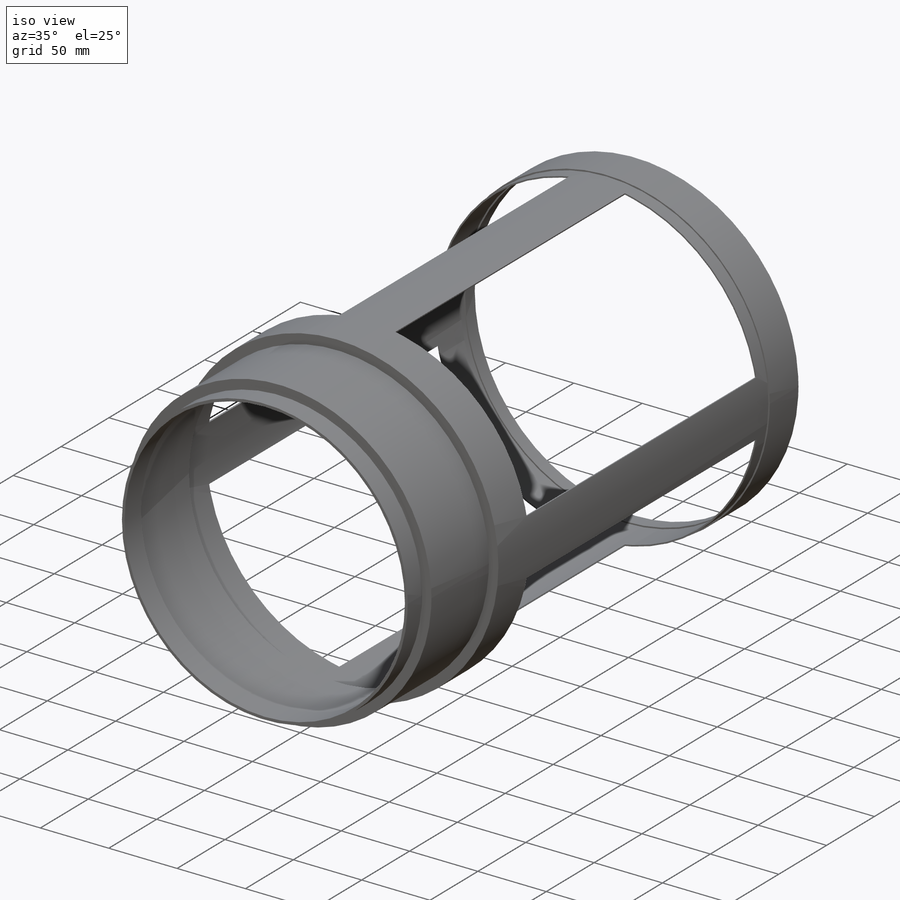
[diagram: iso view]
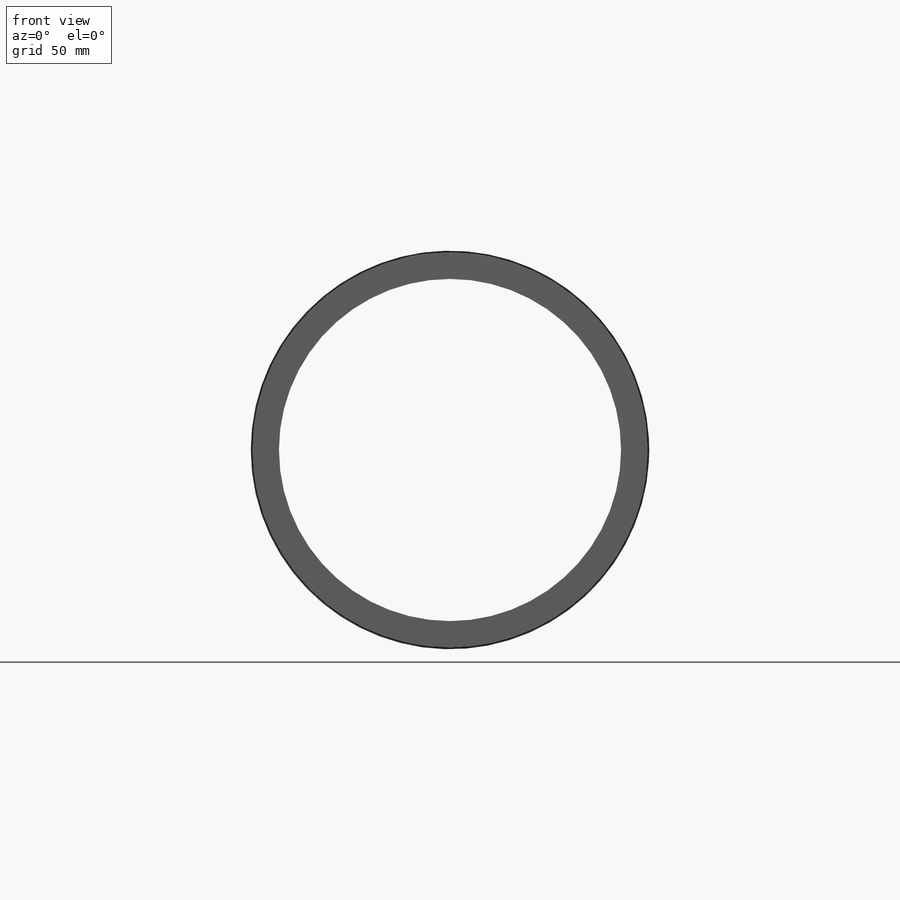
[diagram: front view]
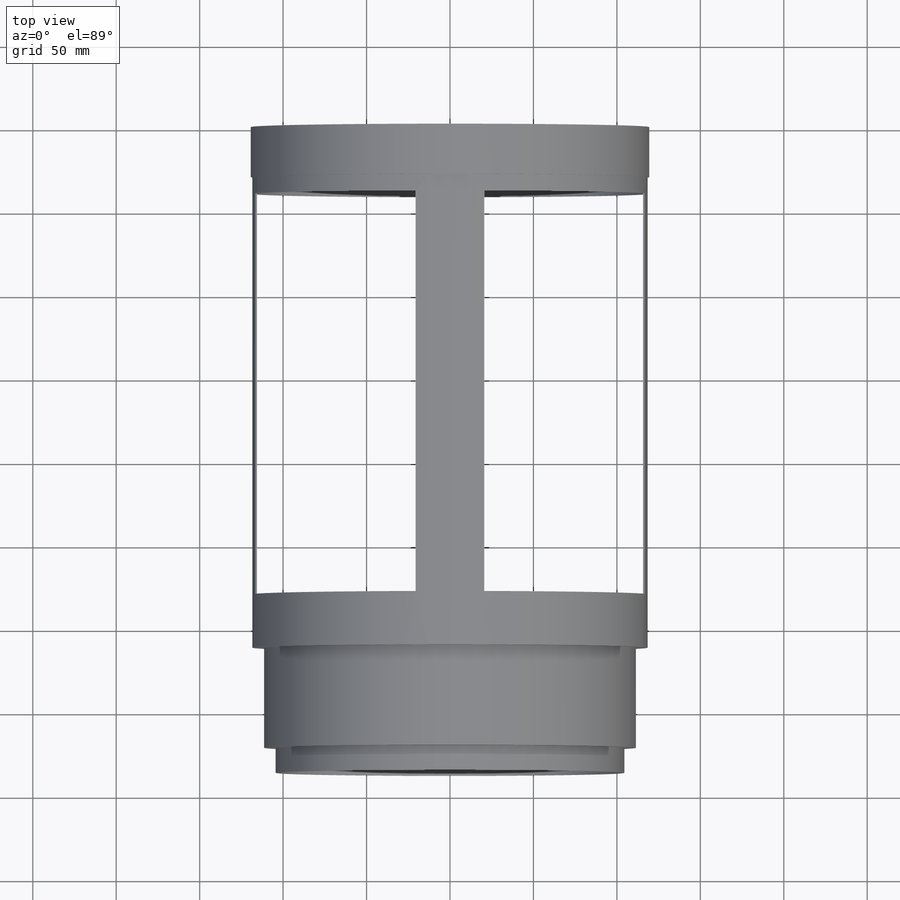
[diagram: top view]
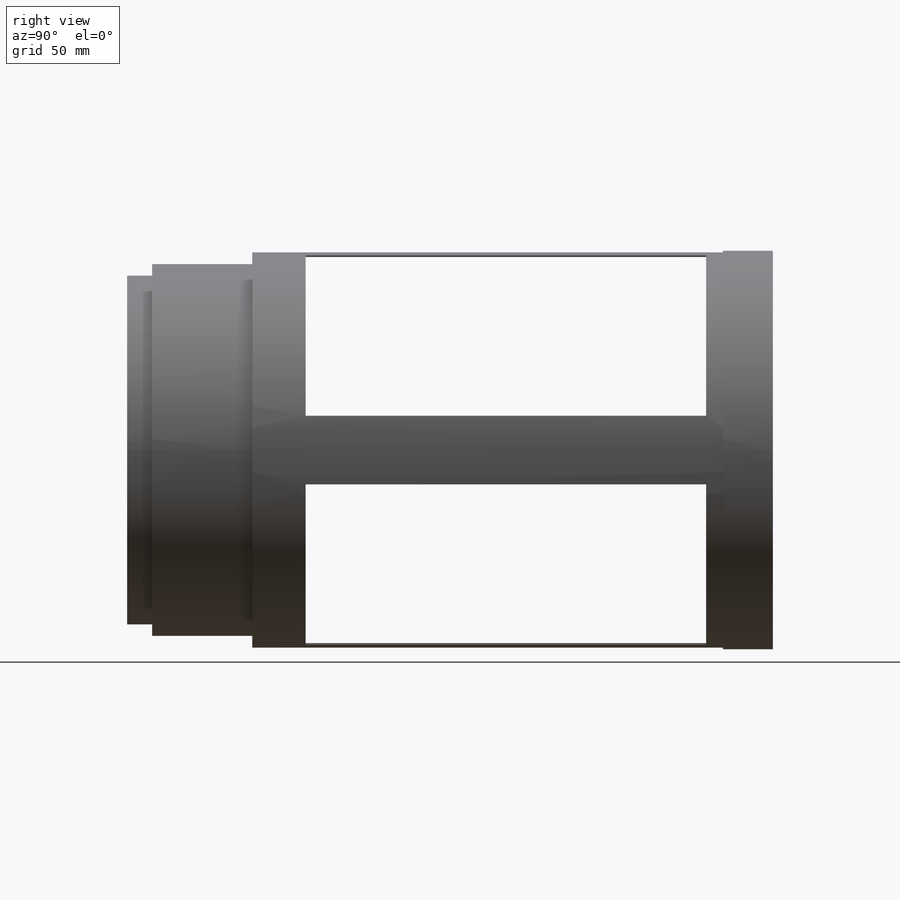
[diagram: right view]
SOLIDWORKS PART (.sldprt)
format: sldprt  version: not decoded by parser v0  size: 316,928 bytes
history: native  units: mm
features: sketch x10, extrude x10, material x1 (+16 scaffold rows collapsed)
feature tree (37):
  scaffold x16  (default folders/planes/origin — collapsed)
  material  "6063-T4"
  sketch  "Sketch1"  dims[D1=~123.403339mm]
  extrude  "Extrude1"  Depth=10mm
  sketch  "Sketch2"  dims[D1=~108.833808mm]
  extrude  "Extrude2"  Depth=5mm
  sketch  "Sketch3"
  extrude  "Extrude3"  Depth=15mm
  sketch  "Sketch4"  dims[D1=~134.207725mm]
  extrude  "Extrude4"  Depth=10mm
  sketch  "Sketch5"  dims[D1=10.0deg]
  extrude  "Extrude5"  Depth=240mm
  sketch  "Sketch6"
  extrude  "Extrude6"  Depth=30mm
  sketch  "Sketch7"  dims[D1=~91.083883mm]
  extrude  "Extrude7"  Depth=2mm
  sketch  "Sketch8"  dims[D1=~112.911132mm]
  extrude  "Extrude8"  Depth=60mm
  sketch  "Sketch9"  dims[D1=~102.096356mm]
  extrude  "Extrude9"  Depth=2mm
  sketch  "Sketch10"  dims[D1=~106.074054mm]
  extrude  "Extrude10"  Depth=15mm
decode coverage: 18 of 20 modeling features carry decoded parameters
note: ~ marks probable driven/reference dimensions
note: suppression state not decoded; provenance and decode notes live in map.json
